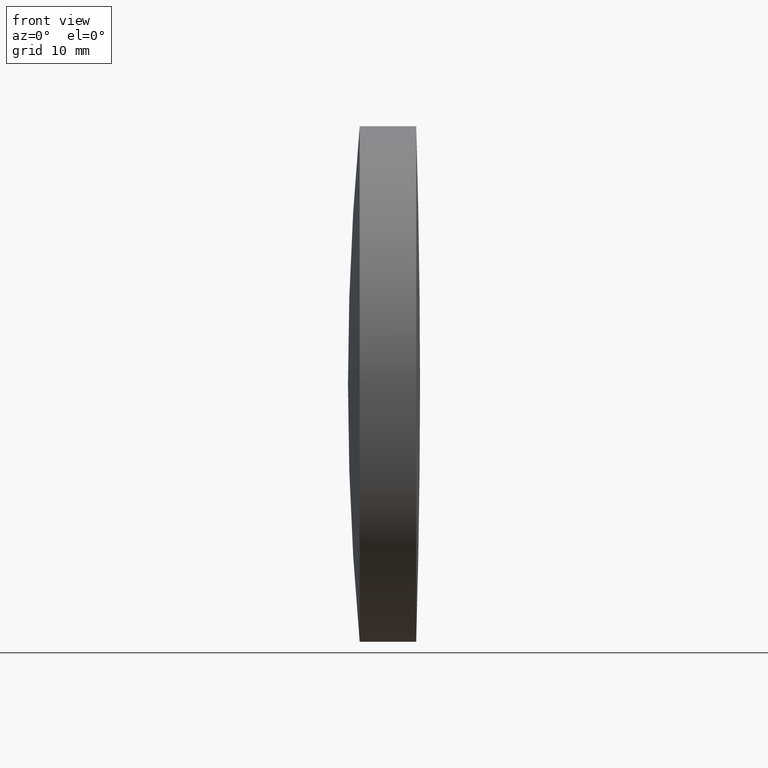
[diagram: clean part render]
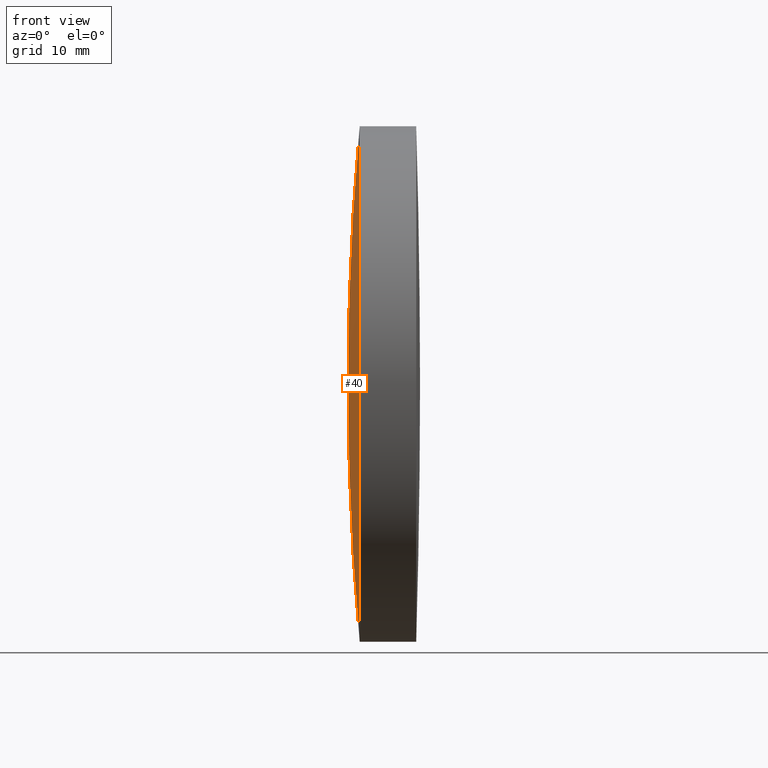
[diagram: same view with one face highlighted and labeled with its STEP entity id]
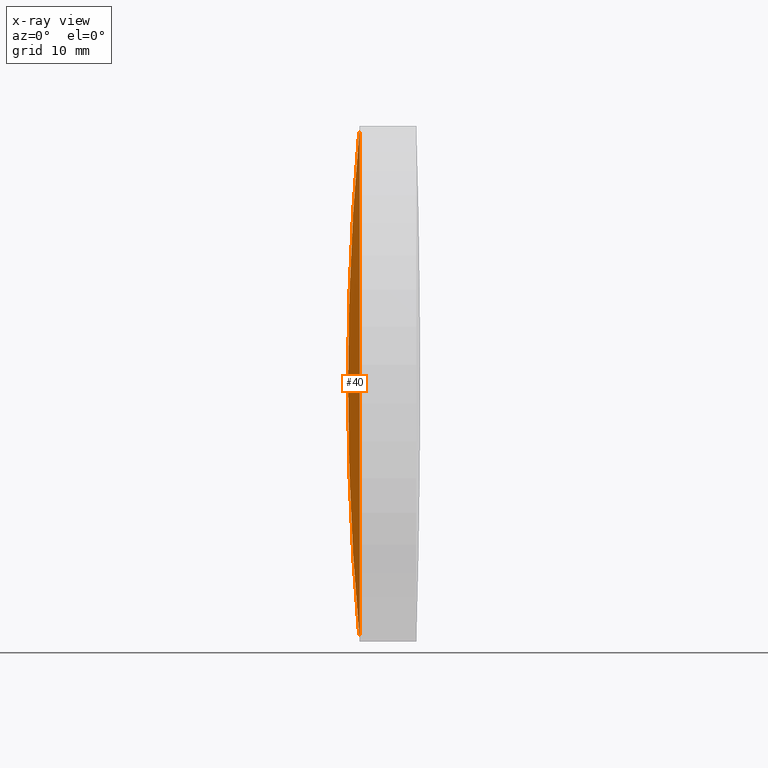
[diagram: x-ray of the same camera — body ghosted, the highlighted face saturated]
A machine part, front view. The second image highlights one B-rep face of the part: STEP entity #40.
The next image is the same camera in x-ray: the body ghosted, the highlighted face saturated — about 0% of this face is hidden behind the body in this view.
In plain terms, the highlighted spherical surface has radius 280.6 mm.
Its self-contained STEP definition (entity closure, byte-faithful):
#10 = EDGE_CURVE ( 'NONE', #95, #283, #260, .T. ) ;
#17 = DIRECTION ( 'NONE',  ( 0.0000000000000000000, 0.0000000000000000000, -1.000000000000000000 ) ) ;
#25 = VERTEX_POINT ( 'NONE', #27 ) ;
#27 = CARTESIAN_POINT ( 'NONE',  ( 661.2805592743232000, 0.0000000000000000000, 1.219721548043810700E-014 ) ) ;
#28 = CARTESIAN_POINT ( 'NONE',  ( 941.8805592743231000, 0.0000000000000000000, -4.984579111599258100E-015 ) ) ;
#39 = EDGE_CURVE ( 'NONE', #95, #25, #336, .T. ) ;
#40 = ADVANCED_FACE ( 'NONE', ( #158 ), #205, .T. ) ;
#51 = AXIS2_PLACEMENT_3D ( 'NONE', #287, #135, #186 ) ;
#84 = DIRECTION ( 'NONE',  ( 0.0000000000000000000, 1.000000000000000000, 0.0000000000000000000 ) ) ;
#85 = CARTESIAN_POINT ( 'NONE',  ( 941.8805592743231000, 0.0000000000000000000, -4.984579111599258100E-015 ) ) ;
#95 = VERTEX_POINT ( 'NONE', #123 ) ;
#97 = AXIS2_PLACEMENT_3D ( 'NONE', #330, #84, #178 ) ;
#123 = CARTESIAN_POINT ( 'NONE',  ( 662.4325319060842500, 3.110602869834266600E-015, -25.39999999999992000 ) ) ;
#135 = DIRECTION ( 'NONE',  ( -1.000000000000000000, -0.0000000000000000000, -0.0000000000000000000 ) ) ;
#139 = AXIS2_PLACEMENT_3D ( 'NONE', #28, #153, #17 ) ;
#153 = DIRECTION ( 'NONE',  ( 0.0000000000000000000, -1.000000000000000000, 0.0000000000000000000 ) ) ;
#158 = FACE_OUTER_BOUND ( 'NONE', #229, .T. ) ;
#178 = DIRECTION ( 'NONE',  ( 0.0000000000000000000, 0.0000000000000000000, 1.000000000000000000 ) ) ;
#182 = ORIENTED_EDGE ( 'NONE', *, *, #10, .T. ) ;
#186 = DIRECTION ( 'NONE',  ( 0.0000000000000000000, 0.0000000000000000000, 1.000000000000000000 ) ) ;
#205 = SPHERICAL_SURFACE ( 'NONE', #97, 280.6000000000000200 ) ;
#218 = ORIENTED_EDGE ( 'NONE', *, *, #319, .T. ) ;
#225 = CARTESIAN_POINT ( 'NONE',  ( 662.4325319060842500, 0.0000000000000000000, 25.39999999999991700 ) ) ;
#229 = EDGE_LOOP ( 'NONE', ( #310, #182, #218 ) ) ;
#260 = CIRCLE ( 'NONE', #51, 25.39999999999999500 ) ;
#280 = AXIS2_PLACEMENT_3D ( 'NONE', #85, #347, #327 ) ;
#283 = VERTEX_POINT ( 'NONE', #225 ) ;
#287 = CARTESIAN_POINT ( 'NONE',  ( 662.4325319060842500, 0.0000000000000000000, 0.0000000000000000000 ) ) ;
#308 = CIRCLE ( 'NONE', #139, 280.6000000000000200 ) ;
#310 = ORIENTED_EDGE ( 'NONE', *, *, #39, .F. ) ;
#319 = EDGE_CURVE ( 'NONE', #283, #25, #308, .T. ) ;
#327 = DIRECTION ( 'NONE',  ( 0.0000000000000000000, -1.224646799147353200E-016, 1.000000000000000000 ) ) ;
#330 = CARTESIAN_POINT ( 'NONE',  ( 941.8805592743231000, 0.0000000000000000000, -4.984579111599258100E-015 ) ) ;
#336 = CIRCLE ( 'NONE', #280, 280.6000000000000200 ) ;
#347 = DIRECTION ( 'NONE',  ( -0.0000000000000000000, 1.000000000000000000, 1.224646799147353200E-016 ) ) ;